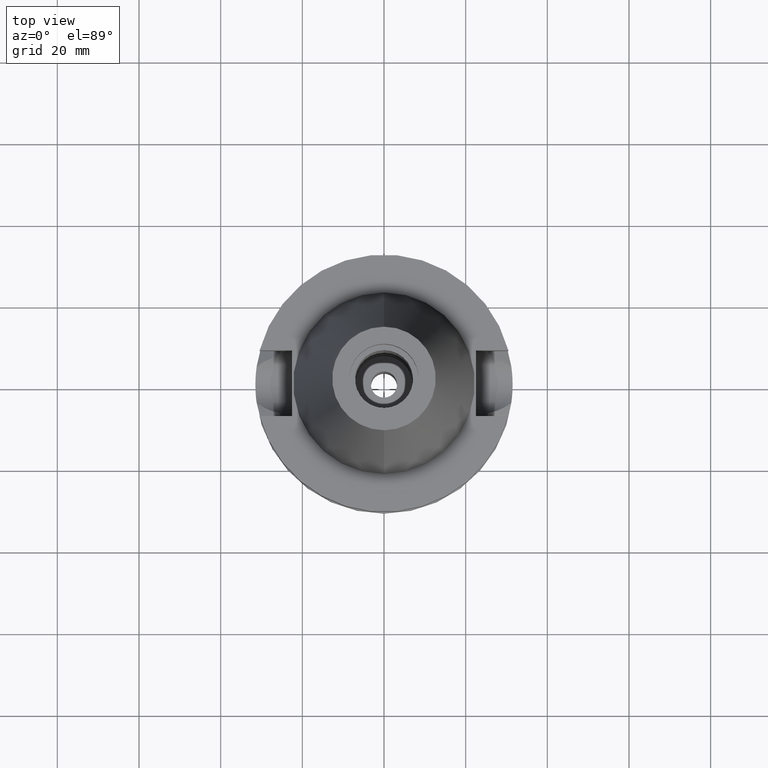
[diagram: clean part render]
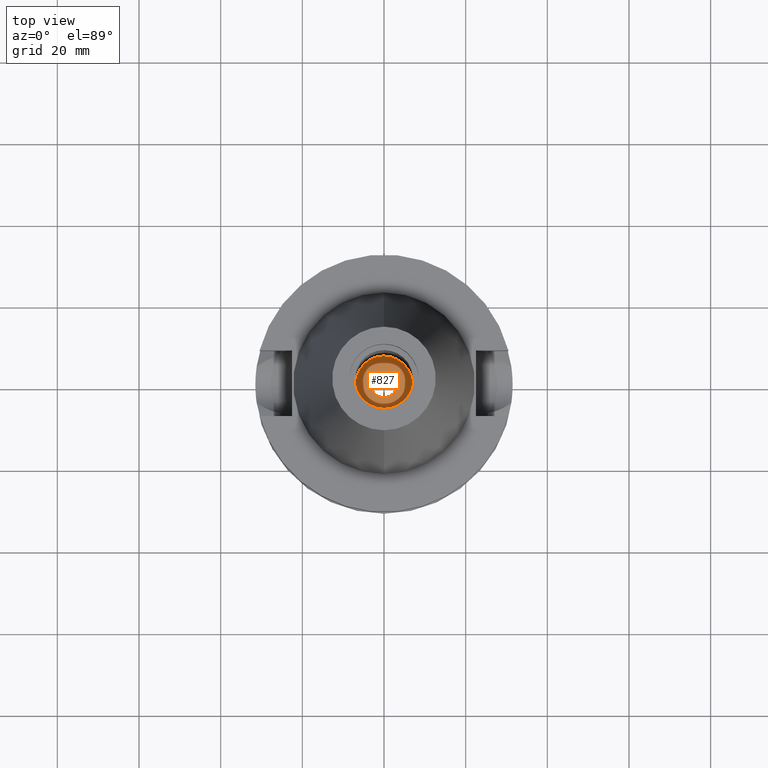
[diagram: same view with one face highlighted and labeled with its STEP entity id]
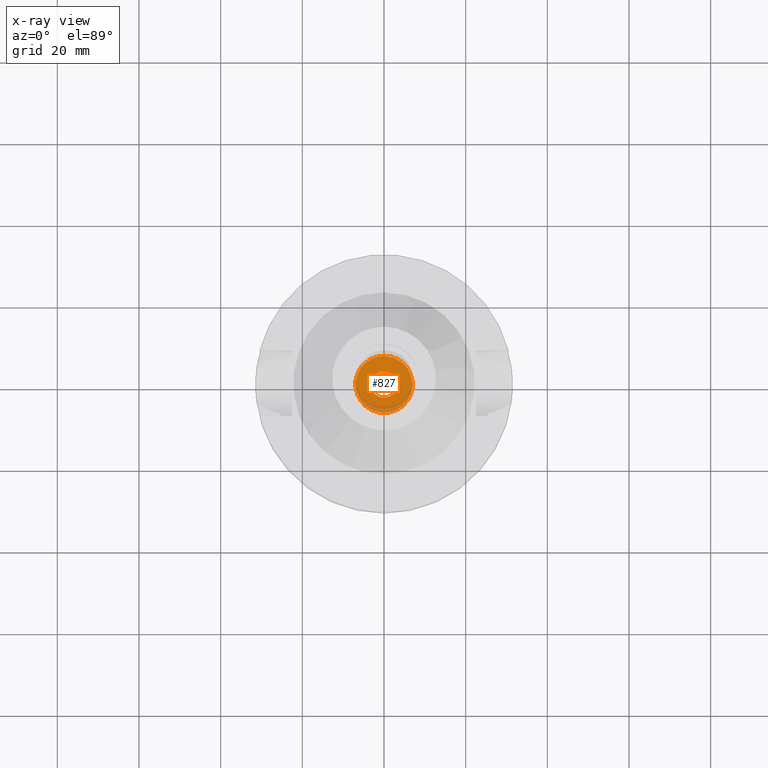
[diagram: x-ray of the same camera — body ghosted, the highlighted face saturated]
A machine part, top view. The second image highlights one B-rep face of the part: STEP entity #827.
The next image is the same camera in x-ray: the body ghosted, the highlighted face saturated — about 14% of this face is hidden behind the body in this view.
In plain terms, the highlighted planar face has unit normal (0, 0, -1).
Its self-contained STEP definition (entity closure, byte-faithful):
#136 = VERTEX_POINT ( 'NONE', #2577 ) ;
#391 = EDGE_CURVE ( 'NONE', #1505, #1412, #2114, .T. ) ;
#425 = EDGE_LOOP ( 'NONE', ( #1210, #670 ) ) ;
#621 = CIRCLE ( 'NONE', #2414, 3.200000000000000178 ) ;
#634 = AXIS2_PLACEMENT_3D ( 'NONE', #1094, #2060, #848 ) ;
#670 = ORIENTED_EDGE ( 'NONE', *, *, #2982, .F. ) ;
#675 = FACE_OUTER_BOUND ( 'NONE', #3151, .T. ) ;
#689 = DIRECTION ( 'NONE',  ( 0.0000000000000000000, -1.000000000000000000, 0.0000000000000000000 ) ) ;
#756 = EDGE_CURVE ( 'NONE', #136, #2602, #942, .T. ) ;
#787 = CARTESIAN_POINT ( 'NONE',  ( 0.0000000000000000000, -3.200000000000000178, -19.59999999999999787 ) ) ;
#827 = ADVANCED_FACE ( 'NONE', ( #675, #2915 ), #1881, .F. ) ;
#848 = DIRECTION ( 'NONE',  ( 0.0000000000000000000, 1.000000000000000000, 0.0000000000000000000 ) ) ;
#926 = DIRECTION ( 'NONE',  ( 0.0000000000000000000, 0.0000000000000000000, 1.000000000000000000 ) ) ;
#942 = CIRCLE ( 'NONE', #634, 7.000000000000000000 ) ;
#1094 = CARTESIAN_POINT ( 'NONE',  ( 0.0000000000000000000, 2.116924457005999917E-14, -19.59999999999999787 ) ) ;
#1182 = DIRECTION ( 'NONE',  ( 0.0000000000000000000, 1.000000000000000000, 0.0000000000000000000 ) ) ;
#1210 = ORIENTED_EDGE ( 'NONE', *, *, #391, .F. ) ;
#1215 = DIRECTION ( 'NONE',  ( 0.0000000000000000000, 0.0000000000000000000, -1.000000000000000000 ) ) ;
#1227 = CARTESIAN_POINT ( 'NONE',  ( 0.0000000000000000000, 0.0000000000000000000, -19.59999999999999787 ) ) ;
#1258 = AXIS2_PLACEMENT_3D ( 'NONE', #1227, #1644, #689 ) ;
#1260 = CARTESIAN_POINT ( 'NONE',  ( 0.0000000000000000000, 3.200000000000000178, -19.59999999999999787 ) ) ;
#1300 = DIRECTION ( 'NONE',  ( 0.0000000000000000000, 0.0000000000000000000, 1.000000000000000000 ) ) ;
#1412 = VERTEX_POINT ( 'NONE', #787 ) ;
#1470 = DIRECTION ( 'NONE',  ( 0.0000000000000000000, -1.000000000000000000, 0.0000000000000000000 ) ) ;
#1494 = CARTESIAN_POINT ( 'NONE',  ( 0.0000000000000000000, -7.000000000000000000, -19.59999999999999787 ) ) ;
#1505 = VERTEX_POINT ( 'NONE', #1260 ) ;
#1644 = DIRECTION ( 'NONE',  ( 0.0000000000000000000, 0.0000000000000000000, -1.000000000000000000 ) ) ;
#1680 = CARTESIAN_POINT ( 'NONE',  ( 0.0000000000000000000, 2.116924457005999917E-14, -19.59999999999999787 ) ) ;
#1694 = CARTESIAN_POINT ( 'NONE',  ( 0.0000000000000000000, 2.116924457005999917E-14, -19.59999999999999787 ) ) ;
#1702 = AXIS2_PLACEMENT_3D ( 'NONE', #1694, #1300, #1182 ) ;
#1862 = ORIENTED_EDGE ( 'NONE', *, *, #756, .F. ) ;
#1881 = PLANE ( 'NONE',  #1258 ) ;
#2060 = DIRECTION ( 'NONE',  ( 0.0000000000000000000, 0.0000000000000000000, -1.000000000000000000 ) ) ;
#2114 = CIRCLE ( 'NONE', #1702, 3.200000000000000178 ) ;
#2138 = ORIENTED_EDGE ( 'NONE', *, *, #2320, .F. ) ;
#2161 = DIRECTION ( 'NONE',  ( 0.0000000000000000000, -1.000000000000000000, 0.0000000000000000000 ) ) ;
#2320 = EDGE_CURVE ( 'NONE', #2602, #136, #2495, .T. ) ;
#2414 = AXIS2_PLACEMENT_3D ( 'NONE', #1680, #926, #2161 ) ;
#2495 = CIRCLE ( 'NONE', #2539, 7.000000000000000000 ) ;
#2539 = AXIS2_PLACEMENT_3D ( 'NONE', #3139, #1215, #1470 ) ;
#2577 = CARTESIAN_POINT ( 'NONE',  ( 0.0000000000000000000, 7.000000000000000000, -19.59999999999999787 ) ) ;
#2602 = VERTEX_POINT ( 'NONE', #1494 ) ;
#2915 = FACE_BOUND ( 'NONE', #425, .T. ) ;
#2982 = EDGE_CURVE ( 'NONE', #1412, #1505, #621, .T. ) ;
#3139 = CARTESIAN_POINT ( 'NONE',  ( 0.0000000000000000000, 2.116924457005999917E-14, -19.59999999999999787 ) ) ;
#3151 = EDGE_LOOP ( 'NONE', ( #1862, #2138 ) ) ;